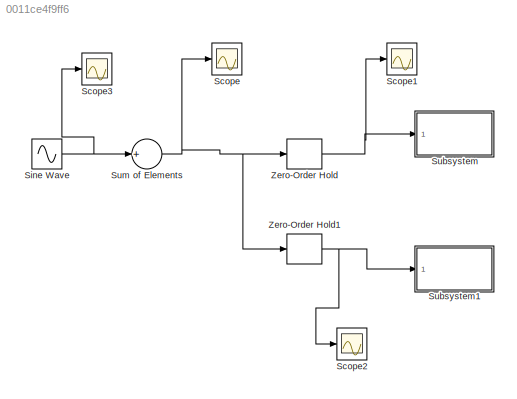
MODEL slx_0011ce4f9ff6
KIND model
CONFIG AbsTol = auto
CONFIG EnableMultiTasking = off
CONFIG FixedStep = 1e-5
CONFIG MaxStep = auto
CONFIG MinStep = auto
CONFIG RelTol = 1e-3
CONFIG SampleTimeConstraint = Unconstrained
CONFIG Solver = FixedStepDiscrete
CONFIG SolverName = FixedStepDiscrete
CONFIG StartTime = 0.0
CONFIG StopTime = 0.05
BLOCK [Scope] Scope
  Floating = off
  NumInputPorts = 1
  Ports = [1]
  ScopeSpecificationString = Simulink.scopes.TimeScopeBlockCfg('CurrentConfiguration', extmgr.ConfigurationSet(extmgr.Configuration('Core','General UI',true),extmgr.Configuration('Core','Source UI',true),extmgr.Configuration('Sources','WiredSimulink',true),extmgr.Configuration('Visuals','Time Domain',true,'SerializedDisplays',{struct('MinYLimReal','-2.21823','MaxYLimReal','2.15039','YLabelReal','','MinYLimMag','0.00000','MaxY...<+1409ch>
BLOCK [Scope] Scope1
  Floating = off
  NumInputPorts = 1
  Ports = [1]
  ScopeSpecificationString = Simulink.scopes.TimeScopeBlockCfg('CurrentConfiguration', extmgr.ConfigurationSet(extmgr.Configuration('Core','General UI',true),extmgr.Configuration('Core','Source UI',true),extmgr.Configuration('Sources','WiredSimulink',true,'DataLoggingVariableName','ScopeData1'),extmgr.Configuration('Visuals','Time Domain',true,'SerializedDisplays',{struct('MinYLimReal','-2.19033','MaxYLimReal','2.0951','YLabe...<+1391ch>
BLOCK [Scope] Scope2
  Floating = off
  NumInputPorts = 1
  Ports = [1]
  ScopeSpecificationString = Simulink.scopes.TimeScopeBlockCfg('CurrentConfiguration', extmgr.ConfigurationSet(extmgr.Configuration('Core','General UI',true),extmgr.Configuration('Core','Source UI',true),extmgr.Configuration('Sources','WiredSimulink',true,'DataLoggingVariableName','ScopeData2'),extmgr.Configuration('Visuals','Time Domain',true,'SerializedDisplays',{struct('MinYLimReal','-1.96249','MaxYLimReal','2.01448','YLab...<+1394ch>
BLOCK [Scope] Scope3
  Floating = off
  NumInputPorts = 1
  Ports = [1]
  ScopeSpecificationString = Simulink.scopes.TimeScopeBlockCfg('CurrentConfiguration', extmgr.ConfigurationSet(extmgr.Configuration('Core','General UI',true),extmgr.Configuration('Core','Source UI',true),extmgr.Configuration('Sources','WiredSimulink',true,'DataLoggingVariableName','ScopeData3'),extmgr.Configuration('Visuals','Time Domain',true,'SerializedDisplays',{struct('MinYLimReal','-1.25','MaxYLimReal','1.25','YLabelReal...<+1366ch>
BLOCK [Sin] Sine Wave
  Frequency = 2*pi*[0.9,1.1]*1e3
  Ports = [0, 1]
  SampleTime = 0
  Samples = 2*pi*[.9,1.1]*1e3;
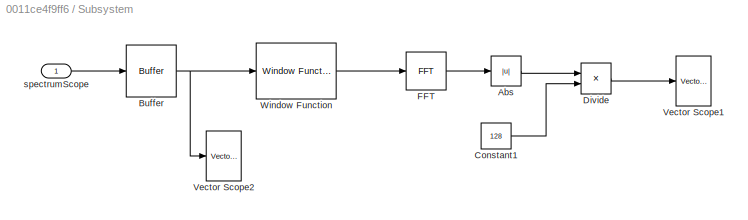
BLOCK [SubSystem] Subsystem
  Ports = [1]
  RequestExecContextInheritance = off
BLOCK [Abs] Subsystem/Abs
  SaturateOnIntegerOverflow = off
BLOCK [Buffer] Subsystem/Buffer
  N = 128
  OutputFrames = off
BLOCK [Constant] Subsystem/Constant1
  Value = 128
BLOCK [Product] Subsystem/Divide
  InputSameDT = off
  Inputs = */
  OutDataTypeStr = Inherit: Inherit via internal rule
  Ports = [2, 1]
  RndMeth = Floor
  SaturateOnIntegerOverflow = off
BLOCK [Reference] Subsystem/FFT  REF=dspxfrm3/FFT
  Ports = [1, 1]
  SourceBlock = dspxfrm3/FFT
  SourceProductBaseCode = DS
  SourceProductName = DSP System Toolbox
  SourceType = FFT
BLOCK [Reference] Subsystem/Vector Scope1  REF=dspobslib/Vector
Scope
  Ports = [1]
  SourceBlock = dspobslib/Vector\nScope
  SourceProductBaseCode = DS
  SourceProductName = DSP System Toolbox
  SourceType = Vector Scope
BLOCK [Reference] Subsystem/Vector Scope2  REF=dspobslib/Vector
Scope
  Ports = [1]
  SourceBlock = dspobslib/Vector\nScope
  SourceProductBaseCode = DS
  SourceProductName = DSP System Toolbox
  SourceType = Vector Scope
BLOCK [Reference] Subsystem/Window Function  REF=dspsigops/Window
Function
  Ports = [1, 1]
  SourceBlock = dspsigops/Window\nFunction
  SourceProductBaseCode = DS
  SourceProductName = DSP System Toolbox
  SourceType = Window Function
BLOCK [Inport] Subsystem/spectrumScope
  IconDisplay = Port number
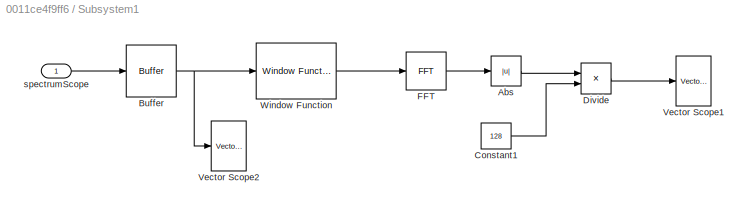
BLOCK [SubSystem] Subsystem1
  Ports = [1]
  RequestExecContextInheritance = off
BLOCK [Abs] Subsystem1/Abs
  SaturateOnIntegerOverflow = off
BLOCK [Buffer] Subsystem1/Buffer
  N = 128
  OutputFrames = off
BLOCK [Constant] Subsystem1/Constant1
  Value = 128
BLOCK [Product] Subsystem1/Divide
  InputSameDT = off
  Inputs = */
  OutDataTypeStr = Inherit: Inherit via internal rule
  Ports = [2, 1]
  RndMeth = Floor
  SaturateOnIntegerOverflow = off
BLOCK [Reference] Subsystem1/FFT  REF=dspxfrm3/FFT
  Ports = [1, 1]
  SourceBlock = dspxfrm3/FFT
  SourceProductBaseCode = DS
  SourceProductName = DSP System Toolbox
  SourceType = FFT
BLOCK [Reference] Subsystem1/Vector Scope1  REF=dspobslib/Vector
Scope
  Ports = [1]
  SourceBlock = dspobslib/Vector\nScope
  SourceProductBaseCode = DS
  SourceProductName = DSP System Toolbox
  SourceType = Vector Scope
BLOCK [Reference] Subsystem1/Vector Scope2  REF=dspobslib/Vector
Scope
  Ports = [1]
  SourceBlock = dspobslib/Vector\nScope
  SourceProductBaseCode = DS
  SourceProductName = DSP System Toolbox
  SourceType = Vector Scope
BLOCK [Reference] Subsystem1/Window Function  REF=dspsigops/Window
Function
  Ports = [1, 1]
  SourceBlock = dspsigops/Window\nFunction
  SourceProductBaseCode = DS
  SourceProductName = DSP System Toolbox
  SourceType = Window Function
BLOCK [Inport] Subsystem1/spectrumScope
  IconDisplay = Port number
BLOCK [Sum] Sum of Elements
  InputSameDT = off
  Inputs = +
  OutDataTypeStr = Inherit: Inherit via internal rule
  Ports = [1, 1]
  SaturateOnIntegerOverflow = off
BLOCK [ZeroOrderHold] Zero-Order Hold
  SampleTime = 5e-5
BLOCK [ZeroOrderHold] Zero-Order Hold1
  SampleTime = 20e-5
NET Sine Wave:1 -> Scope3:1, Sum of Elements:1
LINE Subsystem/Abs:1 -> Subsystem/Divide:1
NET Subsystem/Buffer:1 -> Subsystem/Vector Scope2:1, Subsystem/Window Function:1
LINE Subsystem/Constant1:1 -> Subsystem/Divide:2
LINE Subsystem/Divide:1 -> Subsystem/Vector Scope1:1
LINE Subsystem/FFT:1 -> Subsystem/Abs:1
LINE Subsystem/Window Function:1 -> Subsystem/FFT:1
LINE Subsystem/spectrumScope:1 -> Subsystem/Buffer:1
LINE Subsystem1/Abs:1 -> Subsystem1/Divide:1
NET Subsystem1/Buffer:1 -> Subsystem1/Vector Scope2:1, Subsystem1/Window Function:1
LINE Subsystem1/Constant1:1 -> Subsystem1/Divide:2
LINE Subsystem1/Divide:1 -> Subsystem1/Vector Scope1:1
LINE Subsystem1/FFT:1 -> Subsystem1/Abs:1
LINE Subsystem1/Window Function:1 -> Subsystem1/FFT:1
LINE Subsystem1/spectrumScope:1 -> Subsystem1/Buffer:1
NET Sum of Elements:1 -> Scope:1, Zero-Order Hold1:1, Zero-Order Hold:1
NET Zero-Order Hold1:1 -> Scope2:1, Subsystem1:1
NET Zero-Order Hold:1 -> Scope1:1, Subsystem:1
note: NET lines group one-source signal fan-out (src -> all destinations, sorted); 1:1 wires keep LINE
